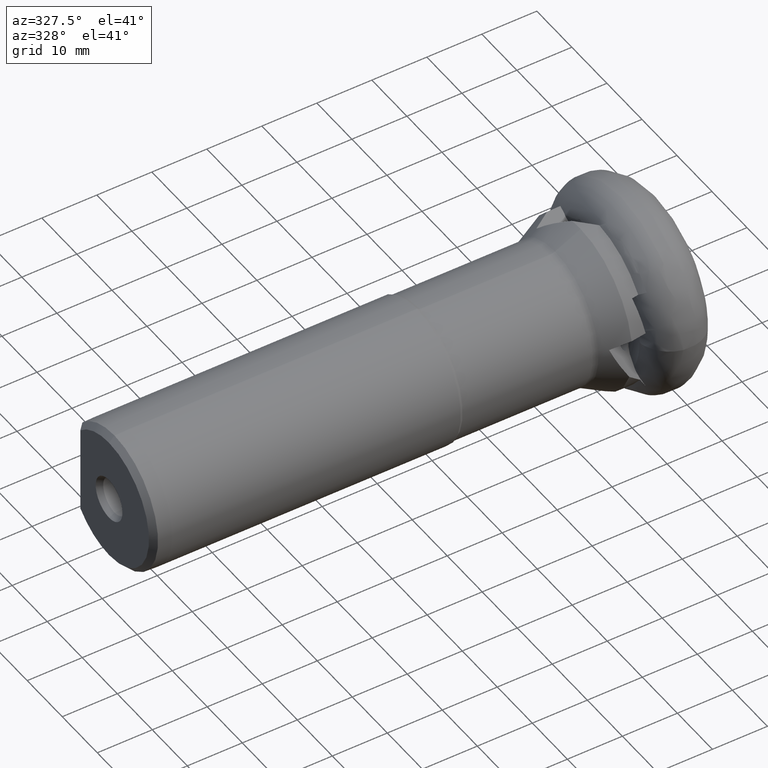
[diagram: clean part render]
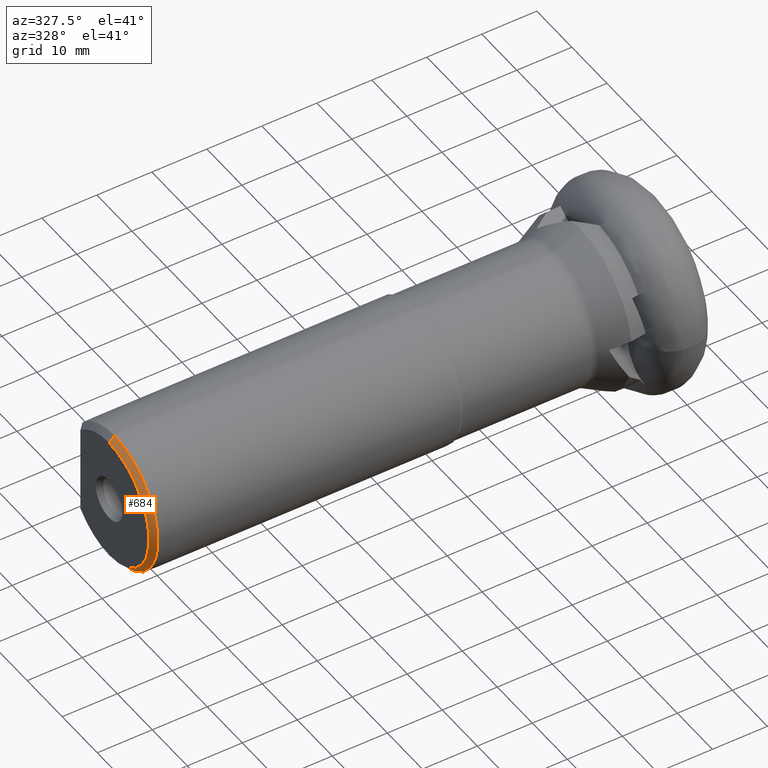
[diagram: same view with one face highlighted and labeled with its STEP entity id]
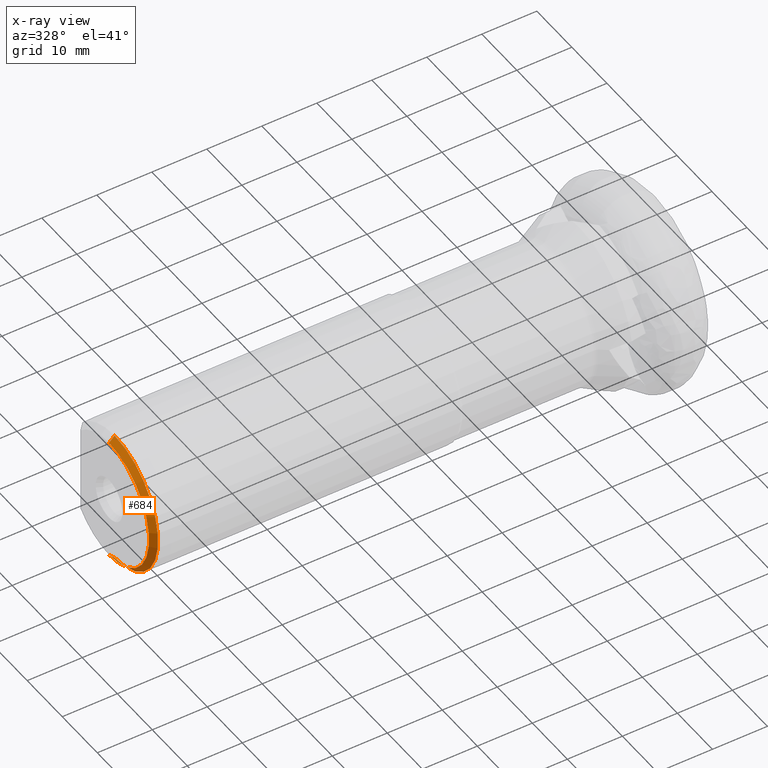
[diagram: x-ray of the same camera — body ghosted, the highlighted face saturated]
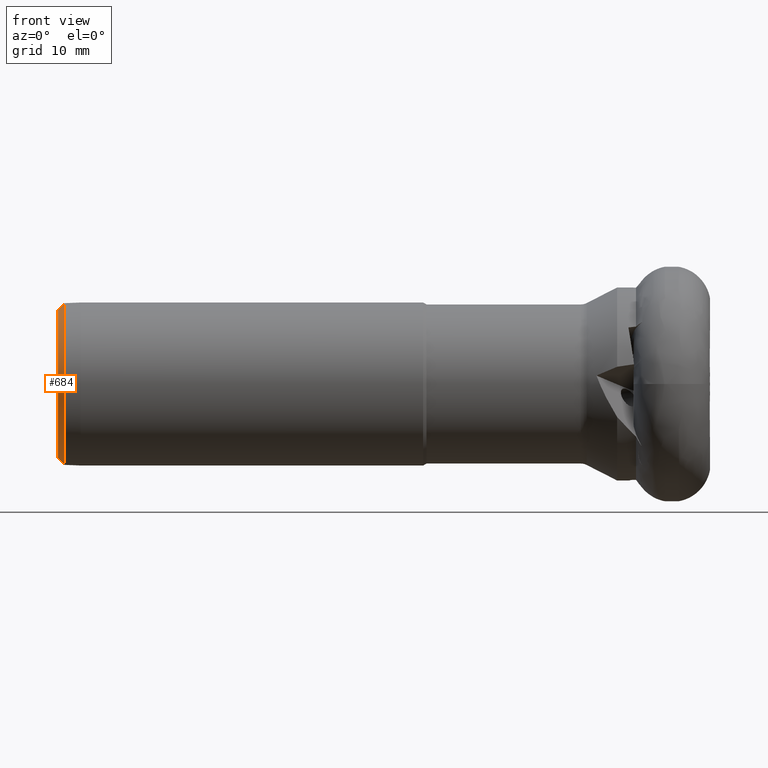
[diagram: same view with one face highlighted and labeled with its STEP entity id]
A machine part, auxiliary view. The second image highlights one B-rep face of the part: STEP entity #684.
The next image is the same camera in x-ray: the body ghosted, the highlighted face saturated — about 0% of this face is hidden behind the body in this view.
A second angle (front view) of the same face is appended — the face is thin or edge-on in the first view.
In plain terms, the highlighted conical surface has half-angle 45 deg.
Its self-contained STEP definition (entity closure, byte-faithful):
#90 = EDGE_CURVE ( 'NONE', #975, #3897, #1861, .T. ) ;
#138 = DIRECTION ( 'NONE',  ( 0.7071067811865440200, 0.0000000000000000000, -0.7071067811865511300 ) ) ;
#185 = ORIENTED_EDGE ( 'NONE', *, *, #2699, .T. ) ;
#382 = DIRECTION ( 'NONE',  ( 1.000000000000000000, -0.0000000000000000000, -0.0000000000000000000 ) ) ;
#384 = VECTOR ( 'NONE', #138, 999.9999999999998900 ) ;
#571 = AXIS2_PLACEMENT_3D ( 'NONE', #1828, #4121, #911 ) ;
#684 = ADVANCED_FACE ( 'NONE', ( #5807 ), #1190, .T. ) ;
#911 = DIRECTION ( 'NONE',  ( 0.0000000000000000000, 0.0000000000000000000, -1.000000000000000000 ) ) ;
#960 = CARTESIAN_POINT ( 'NONE',  ( -97.75000000000000000, 1.518562030942718000E-015, 12.40000000000000000 ) ) ;
#975 = VERTEX_POINT ( 'NONE', #5490 ) ;
#1185 = DIRECTION ( 'NONE',  ( 1.000000000000000000, -0.0000000000000000000, -0.0000000000000000000 ) ) ;
#1190 = CONICAL_SURFACE ( 'NONE', #3582, 12.40000000000000000, 0.7853981633974533900 ) ;
#1341 = DIRECTION ( 'NONE',  ( 0.7071067811865440200, 8.659560562354978500E-017, 0.7071067811865511300 ) ) ;
#1658 = CARTESIAN_POINT ( 'NONE',  ( -97.75000000000000000, 1.518562030942718000E-015, 12.40000000000000000 ) ) ;
#1687 = CIRCLE ( 'NONE', #571, 11.39999999999998800 ) ;
#1701 = ORIENTED_EDGE ( 'NONE', *, *, #5083, .F. ) ;
#1735 = LINE ( 'NONE', #960, #5035 ) ;
#1828 = CARTESIAN_POINT ( 'NONE',  ( -98.75000000000000000, 0.0000000000000000000, 0.0000000000000000000 ) ) ;
#1861 = LINE ( 'NONE', #1981, #384 ) ;
#1981 = CARTESIAN_POINT ( 'NONE',  ( -97.75000000000000000, 0.0000000000000000000, -12.40000000000000000 ) ) ;
#2004 = CARTESIAN_POINT ( 'NONE',  ( -97.75000000000000000, 0.0000000000000000000, -12.40000000000000000 ) ) ;
#2243 = ORIENTED_EDGE ( 'NONE', *, *, #3767, .F. ) ;
#2699 = EDGE_CURVE ( 'NONE', #5212, #975, #1687, .T. ) ;
#3162 = VERTEX_POINT ( 'NONE', #1658 ) ;
#3234 = CIRCLE ( 'NONE', #4442, 12.40000000000000000 ) ;
#3477 = DIRECTION ( 'NONE',  ( 0.0000000000000000000, 0.0000000000000000000, -1.000000000000000000 ) ) ;
#3582 = AXIS2_PLACEMENT_3D ( 'NONE', #5802, #1185, #3477 ) ;
#3767 = EDGE_CURVE ( 'NONE', #3162, #3897, #3234, .T. ) ;
#3826 = CARTESIAN_POINT ( 'NONE',  ( -98.75000000000000000, 1.457329690985349600E-015, 11.39999999999998800 ) ) ;
#3897 = VERTEX_POINT ( 'NONE', #2004 ) ;
#4121 = DIRECTION ( 'NONE',  ( 1.000000000000000000, -0.0000000000000000000, -0.0000000000000000000 ) ) ;
#4442 = AXIS2_PLACEMENT_3D ( 'NONE', #4469, #382, #4529 ) ;
#4469 = CARTESIAN_POINT ( 'NONE',  ( -97.75000000000000000, 0.0000000000000000000, 0.0000000000000000000 ) ) ;
#4529 = DIRECTION ( 'NONE',  ( 0.0000000000000000000, 0.0000000000000000000, -1.000000000000000000 ) ) ;
#5035 = VECTOR ( 'NONE', #1341, 999.9999999999998900 ) ;
#5083 = EDGE_CURVE ( 'NONE', #5212, #3162, #1735, .T. ) ;
#5210 = EDGE_LOOP ( 'NONE', ( #1701, #185, #5293, #2243 ) ) ;
#5212 = VERTEX_POINT ( 'NONE', #3826 ) ;
#5293 = ORIENTED_EDGE ( 'NONE', *, *, #90, .T. ) ;
#5490 = CARTESIAN_POINT ( 'NONE',  ( -98.75000000000000000, 0.0000000000000000000, -11.39999999999998800 ) ) ;
#5802 = CARTESIAN_POINT ( 'NONE',  ( -97.75000000000000000, 0.0000000000000000000, 0.0000000000000000000 ) ) ;
#5807 = FACE_OUTER_BOUND ( 'NONE', #5210, .T. ) ;